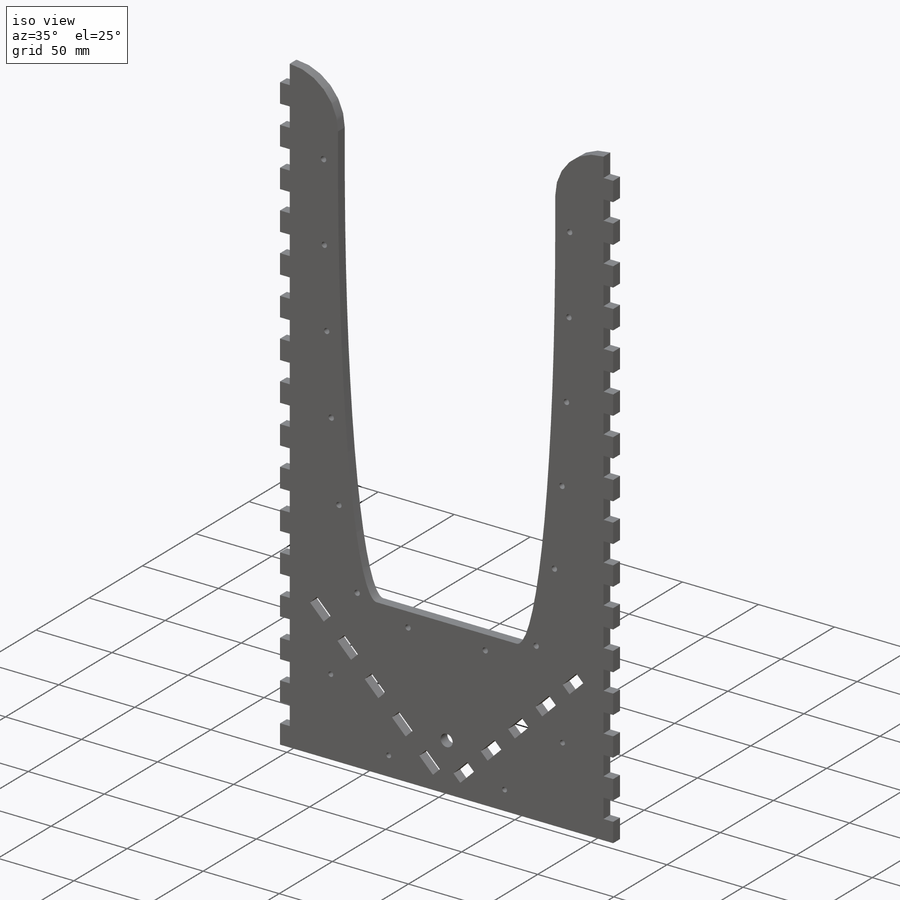
[diagram: iso view]
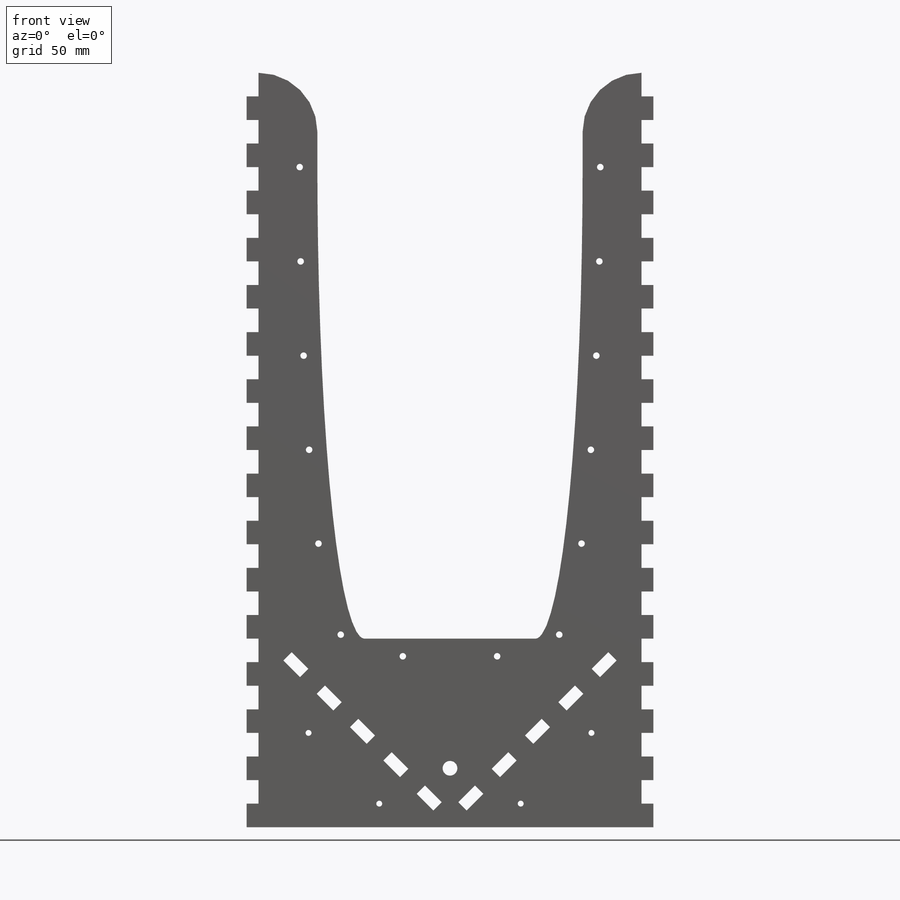
[diagram: front view]
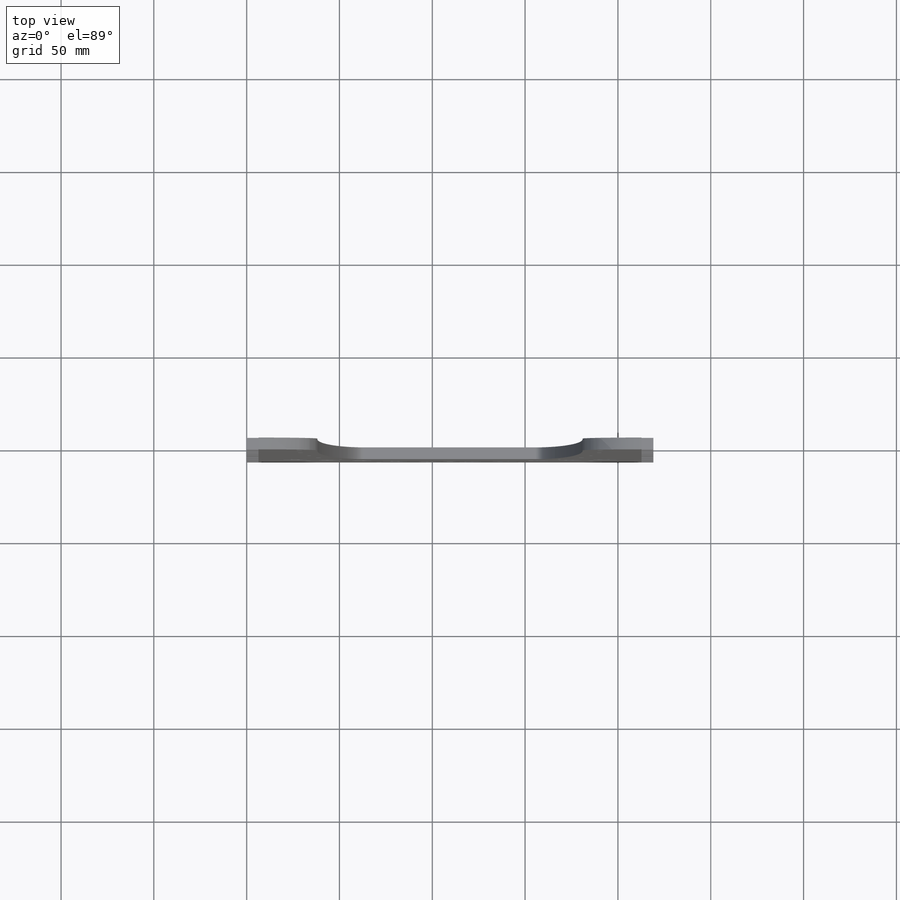
[diagram: top view]
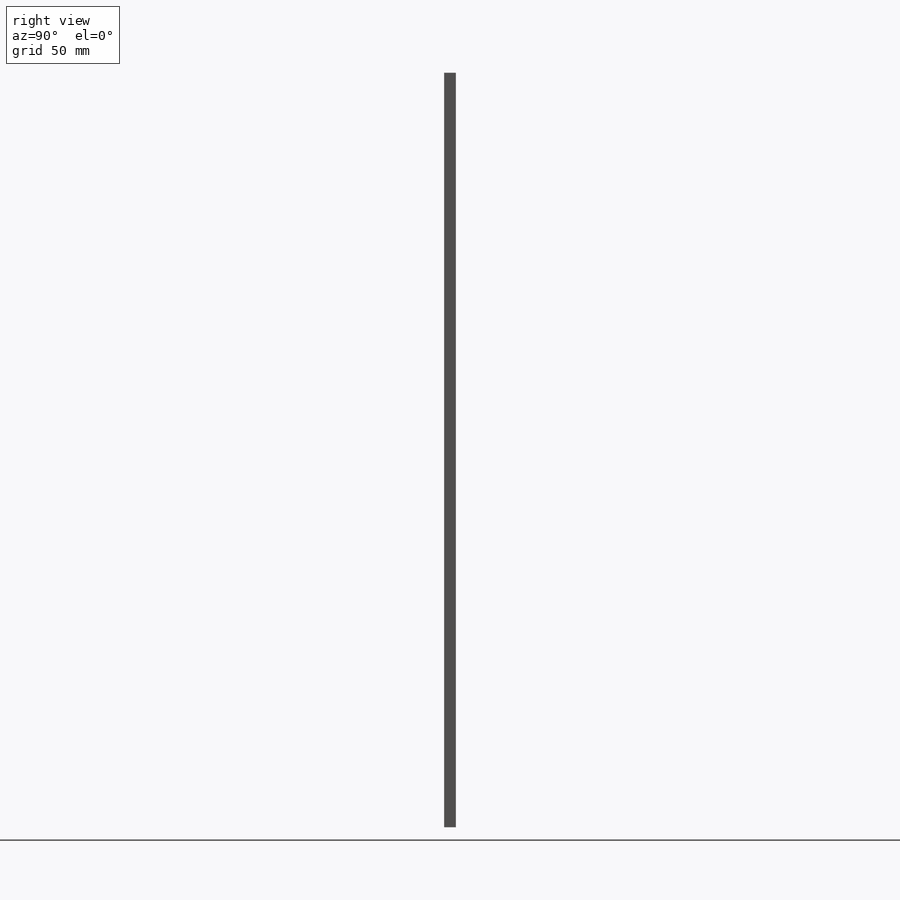
[diagram: right view]
SOLIDWORKS PART (.sldprt)
format: sldprt  version: not decoded by parser v0  size: 492,544 bytes
history: native  units: mm
features: sketch x10, cut_extrude x7, pattern_linear x3, extrude x2, material x1, fillet x1, plane x1, mirror x1 (+13 scaffold rows collapsed)
feature tree (39):
  scaffold x13  (default folders/planes/origin — collapsed)
  material  "Material <not specified>"
  sketch  "Sketch1"  dims[D1=219.075mm D2=406.4mm D3=38.1mm D4=101.6mm D5=38.1mm D6=38.1mm]
  extrude  "Boss-Extrude1"  Depth=6.35mm
  sketch  "Sketch2"  dims[c1.D2=7.9375mm c1.D4=3.175mm c1.D1=38.1mm c1.D3=76.2mm c1.D5=12.7mm c2.D1=19.05mm]
  cut_extrude  "Cut-Extrude1"  [1 undecoded]
  sketch  "Sketch4"  dims[D1=254.0mm D2=25.4mm]
  extrude  "Boss-Extrude2"  [1 undecoded]
  fillet  "Fillet1"  Radius=31.75mm
  sketch  "Sketch5"  dims[c1.D5=2.0mm c1.D6=~5.882717mm c1.D1=10.0mm c1.D2=48.0mm c1.D3=40.64mm c1.D4=20.32mm c2.D6=14.0mm c2.D7=32.0mm c3.D6=14.0mm]
  sketch  "Sketch6"  dims[D1=6.35mm D2=12.7mm]
  cut_extrude  "Cut-Extrude3"  [1 undecoded]
  pattern_linear  "LPattern1"  Count1=16 Count2=1 Spacing1=25.4mm Spacing2=2.54mm
  sketch  "Sketch7"  dims[D1=3.5mm D2=38.1mm D3=9.525mm]
  cut_extrude  "Cut-Extrude4"  Depth=6
  plane  "Plane1"
  mirror  "Mirror1"
  sketch  "Sketch9"  dims[D1=9.525mm D2=50.8mm]
  cut_extrude  "Cut-Extrude5"  [1 undecoded]
  sketch  "Sketch10"  dims[c1.D1=~83.577528mm c2.D1=45.0deg c2.D2=127.0mm c2.D3=6.35mm c2.D4=12.7mm]
  cut_extrude  "Cut-Extrude6"  [1 undecoded]
  pattern_linear  "LPattern2"  Count1=5 Count2=1 Spacing1=25.4mm Spacing2=2.54mm
  sketch  "Sketch11"  dims[D1=6.35mm D2=12.7mm]
  cut_extrude  "Cut-Extrude7"  [1 undecoded]
  pattern_linear  "LPattern3"  Count1=5 Count2=1 Spacing1=25.4mm Spacing2=2.54mm
  sketch  "Sketch13"  dims[c1.D1=3.175mm c1.D2=~10.720261mm c1.D3=~10.184248mm c1.D4=3.175mm c2.D1=38.1mm c2.D2=38.1mm c2.D3=38.1mm c2.D4=38.1mm]
  cut_extrude  "Cut-Extrude8"  [1 undecoded]
decode coverage: 16 of 24 modeling features carry decoded parameters
note: ~ marks probable driven/reference dimensions
note: 7 parameter values undecoded
summary: no parameter record found for 7 features
note: suppression state not decoded; provenance and decode notes live in map.json
